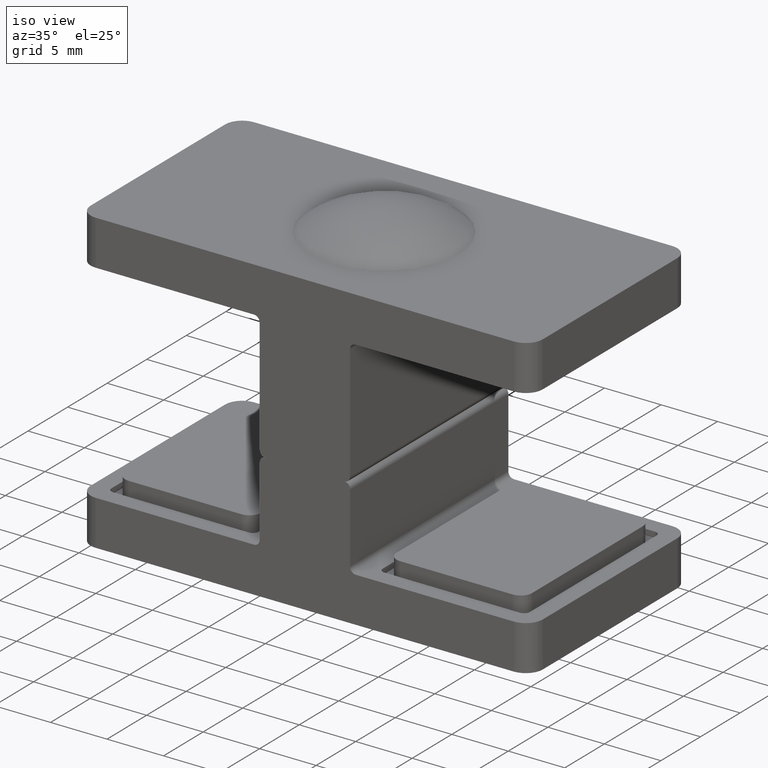
[diagram: clean part render]
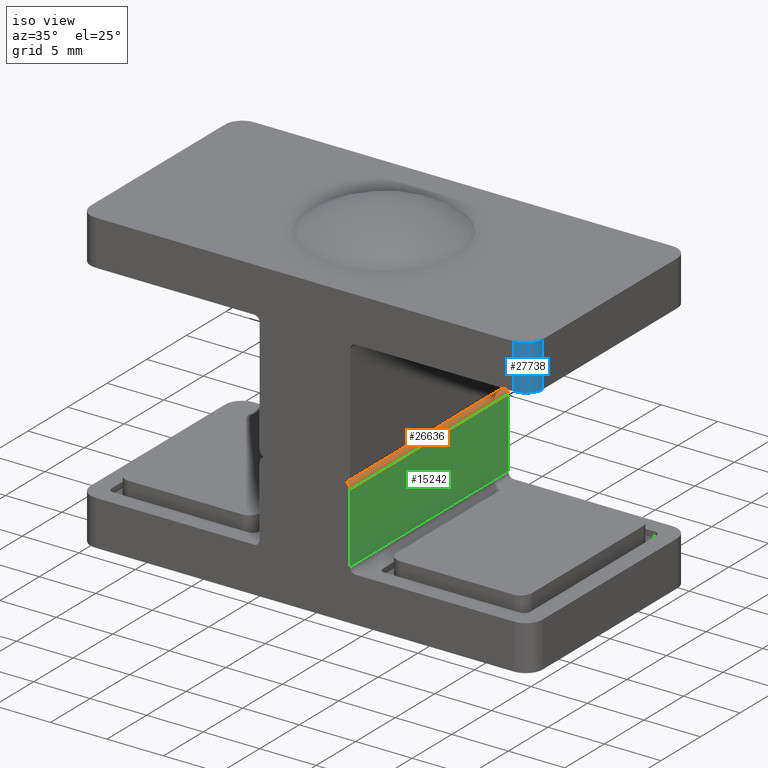
[diagram: same view with three faces highlighted in distinct colors, each labeled with its STEP entity id]
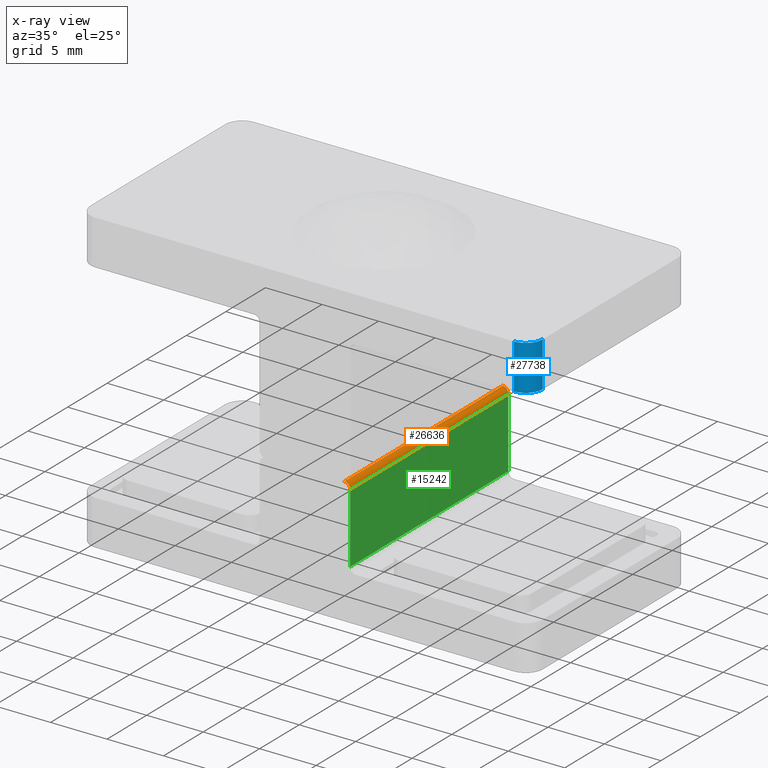
[diagram: x-ray of the same camera — body ghosted, the three highlighted faces saturated]
A machine part, iso view with three faces highlighted in distinct colors.
The next image is the same camera in x-ray (body ghosted, the three faces saturated) — at least one of them is partly hidden behind the body in this view.
Their STEP definitions:

[orange] entity #26636 — the highlighted cylindrical surface (edge-blend (fillet) strip) has radius 0.5 mm, axis along (0, -1, 0).
#2177 = VECTOR ( 'NONE', #15458, 1000.000000000000000 ) ;
#2404 = EDGE_CURVE ( 'NONE', #30817, #4622, #29348, .T. ) ;
#4123 = CARTESIAN_POINT ( 'NONE',  ( 3.500000000000000000, 0.000000000000000000, 10.69999999999999929 ) ) ;
#4259 = EDGE_CURVE ( 'NONE', #4622, #32430, #28110, .T. ) ;
#4622 = VERTEX_POINT ( 'NONE', #33788 ) ;
#5570 = DIRECTION ( 'NONE',  ( 0.000000000000000000, 1.000000000000000000, -0.000000000000000000 ) ) ;
#6937 = ORIENTED_EDGE ( 'NONE', *, *, #2404, .F. ) ;
#7087 = DIRECTION ( 'NONE',  ( 0.000000000000000000, -1.000000000000000000, 0.000000000000000000 ) ) ;
#7432 = DIRECTION ( 'NONE',  ( 0.000000000000000000, 0.000000000000000000, -1.000000000000000000 ) ) ;
#9379 = LINE ( 'NONE', #12625, #2177 ) ;
#9755 = EDGE_LOOP ( 'NONE', ( #13876, #20360, #28099, #6937 ) ) ;
#10210 = DIRECTION ( 'NONE',  ( -0.000000000000000000, 1.000000000000000000, -0.000000000000000000 ) ) ;
#12625 = CARTESIAN_POINT ( 'NONE',  ( 4.000000000000000000, -9.999999999999998224, 10.69999999999999929 ) ) ;
#12691 = FACE_OUTER_BOUND ( 'NONE', #9755, .T. ) ;
#12937 = CIRCLE ( 'NONE', #16518, 0.5000000000000004441 ) ;
#13876 = ORIENTED_EDGE ( 'NONE', *, *, #31003, .F. ) ;
#15350 = AXIS2_PLACEMENT_3D ( 'NONE', #4123, #7087, #7432 ) ;
#15458 = DIRECTION ( 'NONE',  ( -0.000000000000000000, -1.000000000000000000, -0.000000000000000000 ) ) ;
#16518 = AXIS2_PLACEMENT_3D ( 'NONE', #31087, #20576, #26070 ) ;
#16895 = CYLINDRICAL_SURFACE ( 'NONE', #15350, 0.5000000000000004441 ) ;
#20360 = ORIENTED_EDGE ( 'NONE', *, *, #22598, .F. ) ;
#20576 = DIRECTION ( 'NONE',  ( -0.000000000000000000, -1.000000000000000000, -0.000000000000000000 ) ) ;
#21508 = CARTESIAN_POINT ( 'NONE',  ( 4.000000000000000000, 9.999999999999998224, 10.69999999999999929 ) ) ;
#22598 = EDGE_CURVE ( 'NONE', #32430, #34383, #9379, .T. ) ;
#23728 = DIRECTION ( 'NONE',  ( 0.000000000000000000, 0.000000000000000000, -1.000000000000000000 ) ) ;
#24770 = CARTESIAN_POINT ( 'NONE',  ( 3.500000000000000000, 9.999999999999998224, 11.19999999999999929 ) ) ;
#26070 = DIRECTION ( 'NONE',  ( 2.602085213965208275E-15, 0.000000000000000000, 1.000000000000000000 ) ) ;
#26636 = ADVANCED_FACE ( 'NONE', ( #12691 ), #16895, .T. ) ;
#28099 = ORIENTED_EDGE ( 'NONE', *, *, #4259, .F. ) ;
#28110 = CIRCLE ( 'NONE', #34056, 0.5000000000000004441 ) ;
#29348 = LINE ( 'NONE', #24770, #33579 ) ;
#29929 = CARTESIAN_POINT ( 'NONE',  ( 3.499999999999999556, -9.999999999999998224, 11.19999999999999929 ) ) ;
#30817 = VERTEX_POINT ( 'NONE', #29929 ) ;
#31003 = EDGE_CURVE ( 'NONE', #34383, #30817, #12937, .T. ) ;
#31087 = CARTESIAN_POINT ( 'NONE',  ( 3.500000000000000000, -10.00000000000000355, 10.69999999999999929 ) ) ;
#32430 = VERTEX_POINT ( 'NONE', #21508 ) ;
#33579 = VECTOR ( 'NONE', #5570, 1000.000000000000000 ) ;
#33788 = CARTESIAN_POINT ( 'NONE',  ( 3.499999999999999556, 9.999999999999998224, 11.19999999999999929 ) ) ;
#34056 = AXIS2_PLACEMENT_3D ( 'NONE', #34886, #10210, #23728 ) ;
#34383 = VERTEX_POINT ( 'NONE', #34917 ) ;
#34886 = CARTESIAN_POINT ( 'NONE',  ( 3.500000000000000000, 9.999999999999998224, 10.69999999999999929 ) ) ;
#34917 = CARTESIAN_POINT ( 'NONE',  ( 4.000000000000000000, -9.999999999999998224, 10.69999999999999929 ) ) ;

[blue] entity #27738 — the highlighted cylindrical surface (edge-blend (fillet) strip) has radius 1.5 mm, axis along (0, 0, 1).
#997 = DIRECTION ( 'NONE',  ( 0.000000000000000000, 0.000000000000000000, 1.000000000000000000 ) ) ;
#1210 = FACE_OUTER_BOUND ( 'NONE', #12176, .T. ) ;
#1404 = DIRECTION ( 'NONE',  ( -0.000000000000000000, 0.000000000000000000, 1.000000000000000000 ) ) ;
#2427 = AXIS2_PLACEMENT_3D ( 'NONE', #28848, #13044, #7351 ) ;
#2982 = CARTESIAN_POINT ( 'NONE',  ( 18.50000000000000355, -8.500000000000003553, -4.000000000000000000 ) ) ;
#3101 = DIRECTION ( 'NONE',  ( 1.000000000000000000, 0.000000000000000000, 0.000000000000000000 ) ) ;
#4526 = CARTESIAN_POINT ( 'NONE',  ( 20.00000000000001066, -8.500000000000003553, -4.000000000000000000 ) ) ;
#5152 = EDGE_CURVE ( 'NONE', #11005, #21372, #33986, .T. ) ;
#5427 = LINE ( 'NONE', #14504, #33839 ) ;
#5459 = LINE ( 'NONE', #4526, #21147 ) ;
#5553 = CARTESIAN_POINT ( 'NONE',  ( 18.50000000000000355, -10.00000000000000355, -4.000000000000000000 ) ) ;
#7351 = DIRECTION ( 'NONE',  ( 1.000000000000000000, 0.000000000000000000, 0.000000000000000000 ) ) ;
#8444 = DIRECTION ( 'NONE',  ( 0.000000000000000000, -0.000000000000000000, -1.000000000000000000 ) ) ;
#9562 = DIRECTION ( 'NONE',  ( 1.000000000000000000, 0.000000000000000000, 0.000000000000000000 ) ) ;
#9847 = DIRECTION ( 'NONE',  ( -0.000000000000000000, -0.000000000000000000, -1.000000000000000000 ) ) ;
#10682 = CARTESIAN_POINT ( 'NONE',  ( 20.00000000000001066, -8.500000000000003553, -4.000000000000000000 ) ) ;
#11005 = VERTEX_POINT ( 'NONE', #18988 ) ;
#12176 = EDGE_LOOP ( 'NONE', ( #19348, #13690, #26205, #14788 ) ) ;
#12911 = AXIS2_PLACEMENT_3D ( 'NONE', #2982, #8444, #3101 ) ;
#13044 = DIRECTION ( 'NONE',  ( 0.000000000000000000, 0.000000000000000000, 1.000000000000000000 ) ) ;
#13690 = ORIENTED_EDGE ( 'NONE', *, *, #14240, .F. ) ;
#14240 = EDGE_CURVE ( 'NONE', #21372, #15579, #5459, .T. ) ;
#14504 = CARTESIAN_POINT ( 'NONE',  ( 18.50000000000000355, -10.00000000000000355, -4.000000000000000000 ) ) ;
#14788 = ORIENTED_EDGE ( 'NONE', *, *, #15679, .F. ) ;
#15579 = VERTEX_POINT ( 'NONE', #10682 ) ;
#15679 = EDGE_CURVE ( 'NONE', #27914, #11005, #5427, .T. ) ;
#17110 = EDGE_CURVE ( 'NONE', #15579, #27914, #32105, .T. ) ;
#17582 = CARTESIAN_POINT ( 'NONE',  ( 18.50000000000000355, -8.500000000000003553, 0.000000000000000000 ) ) ;
#17775 = CARTESIAN_POINT ( 'NONE',  ( 20.00000000000001066, -8.500000000000003553, 0.000000000000000000 ) ) ;
#18988 = CARTESIAN_POINT ( 'NONE',  ( 18.50000000000000355, -10.00000000000000355, 0.000000000000000000 ) ) ;
#19348 = ORIENTED_EDGE ( 'NONE', *, *, #17110, .F. ) ;
#21147 = VECTOR ( 'NONE', #9847, 1000.000000000000000 ) ;
#21372 = VERTEX_POINT ( 'NONE', #17775 ) ;
#22240 = AXIS2_PLACEMENT_3D ( 'NONE', #17582, #1404, #9562 ) ;
#26205 = ORIENTED_EDGE ( 'NONE', *, *, #5152, .F. ) ;
#27738 = ADVANCED_FACE ( 'NONE', ( #1210 ), #30922, .T. ) ;
#27914 = VERTEX_POINT ( 'NONE', #5553 ) ;
#28848 = CARTESIAN_POINT ( 'NONE',  ( 18.50000000000000355, -8.500000000000003553, -4.000000000000000000 ) ) ;
#30922 = CYLINDRICAL_SURFACE ( 'NONE', #2427, 1.500000000000001332 ) ;
#32105 = CIRCLE ( 'NONE', #12911, 1.500000000000001332 ) ;
#33839 = VECTOR ( 'NONE', #997, 1000.000000000000000 ) ;
#33986 = CIRCLE ( 'NONE', #22240, 1.500000000000001332 ) ;

[green] entity #15242 — the highlighted planar face has unit normal (-1, 0, 0).
#2177 = VECTOR ( 'NONE', #15458, 1000.000000000000000 ) ;
#3137 = DIRECTION ( 'NONE',  ( 0.000000000000000000, 0.000000000000000000, 1.000000000000000000 ) ) ;
#3330 = ORIENTED_EDGE ( 'NONE', *, *, #9604, .T. ) ;
#5754 = DIRECTION ( 'NONE',  ( -1.000000000000000000, 0.000000000000000000, 0.000000000000000000 ) ) ;
#5807 = VERTEX_POINT ( 'NONE', #19375 ) ;
#7324 = EDGE_LOOP ( 'NONE', ( #3330, #31302, #24525, #11596 ) ) ;
#8317 = LINE ( 'NONE', #16547, #31251 ) ;
#9379 = LINE ( 'NONE', #12625, #2177 ) ;
#9604 = EDGE_CURVE ( 'NONE', #34383, #5807, #15525, .T. ) ;
#9814 = EDGE_CURVE ( 'NONE', #32430, #32794, #8317, .T. ) ;
#11596 = ORIENTED_EDGE ( 'NONE', *, *, #22598, .T. ) ;
#12625 = CARTESIAN_POINT ( 'NONE',  ( 4.000000000000000000, -9.999999999999998224, 10.69999999999999929 ) ) ;
#15242 = ADVANCED_FACE ( 'NONE', ( #28798 ), #27709, .F. ) ;
#15458 = DIRECTION ( 'NONE',  ( -0.000000000000000000, -1.000000000000000000, -0.000000000000000000 ) ) ;
#15525 = LINE ( 'NONE', #26122, #22732 ) ;
#16547 = CARTESIAN_POINT ( 'NONE',  ( 4.000000000000000000, 9.999999999999998224, 11.19999999999999929 ) ) ;
#16877 = DIRECTION ( 'NONE',  ( 0.000000000000000000, 1.000000000000000000, 0.000000000000000000 ) ) ;
#16927 = VECTOR ( 'NONE', #16877, 1000.000000000000000 ) ;
#18782 = CARTESIAN_POINT ( 'NONE',  ( 4.000000000000000000, 9.999999999999998224, 4.500000000000000888 ) ) ;
#19375 = CARTESIAN_POINT ( 'NONE',  ( 4.000000000000000000, -9.999999999999998224, 4.500000000000000888 ) ) ;
#21508 = CARTESIAN_POINT ( 'NONE',  ( 4.000000000000000000, 9.999999999999998224, 10.69999999999999929 ) ) ;
#21970 = CARTESIAN_POINT ( 'NONE',  ( 4.000000000000000000, 9.999999999999998224, 11.19999999999999929 ) ) ;
#22598 = EDGE_CURVE ( 'NONE', #32430, #34383, #9379, .T. ) ;
#22732 = VECTOR ( 'NONE', #34083, 1000.000000000000000 ) ;
#24525 = ORIENTED_EDGE ( 'NONE', *, *, #9814, .F. ) ;
#25101 = DIRECTION ( 'NONE',  ( -0.000000000000000000, -0.000000000000000000, -1.000000000000000000 ) ) ;
#25166 = AXIS2_PLACEMENT_3D ( 'NONE', #21970, #5754, #3137 ) ;
#26122 = CARTESIAN_POINT ( 'NONE',  ( 4.000000000000000000, -9.999999999999998224, 11.19999999999999929 ) ) ;
#27709 = PLANE ( 'NONE',  #25166 ) ;
#28798 = FACE_OUTER_BOUND ( 'NONE', #7324, .T. ) ;
#29737 = LINE ( 'NONE', #18782, #16927 ) ;
#30921 = CARTESIAN_POINT ( 'NONE',  ( 4.000000000000000000, 9.999999999999998224, 4.500000000000000888 ) ) ;
#31251 = VECTOR ( 'NONE', #25101, 1000.000000000000000 ) ;
#31302 = ORIENTED_EDGE ( 'NONE', *, *, #35177, .T. ) ;
#32430 = VERTEX_POINT ( 'NONE', #21508 ) ;
#32794 = VERTEX_POINT ( 'NONE', #30921 ) ;
#34083 = DIRECTION ( 'NONE',  ( -0.000000000000000000, -0.000000000000000000, -1.000000000000000000 ) ) ;
#34383 = VERTEX_POINT ( 'NONE', #34917 ) ;
#34917 = CARTESIAN_POINT ( 'NONE',  ( 4.000000000000000000, -9.999999999999998224, 10.69999999999999929 ) ) ;
#35177 = EDGE_CURVE ( 'NONE', #5807, #32794, #29737, .T. ) ;